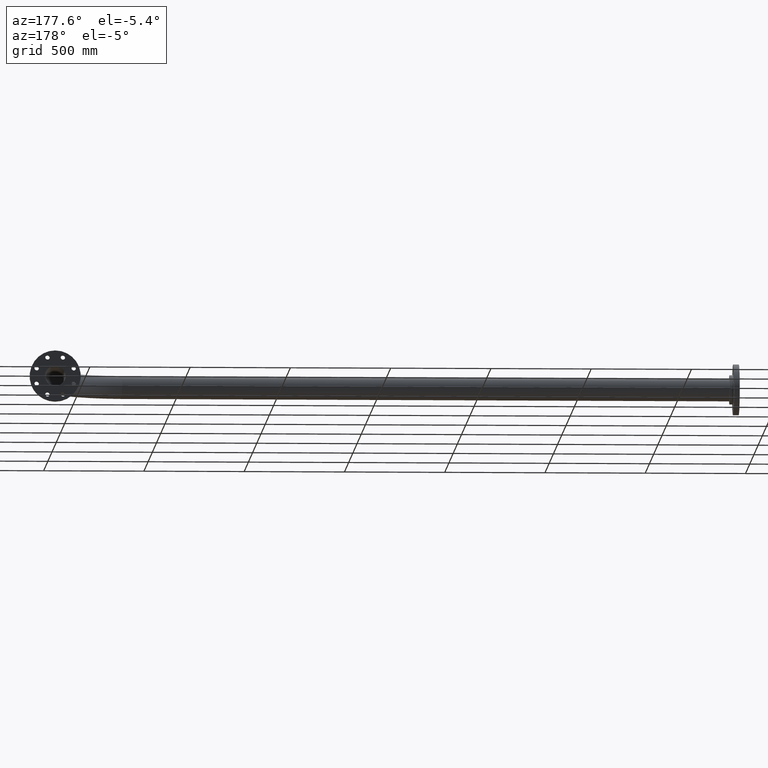
[diagram: clean part render]
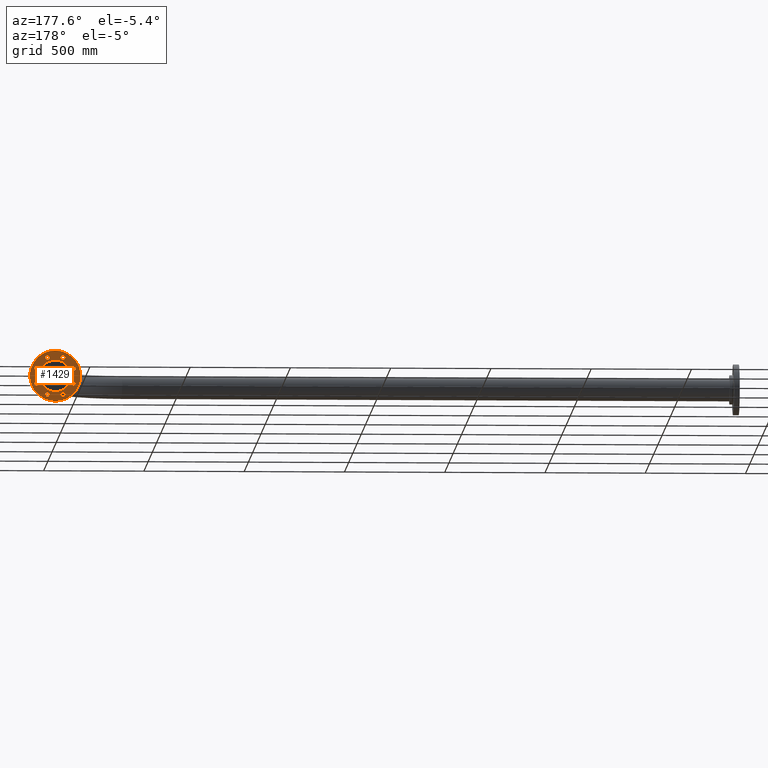
[diagram: same view with one face highlighted and labeled with its STEP entity id]
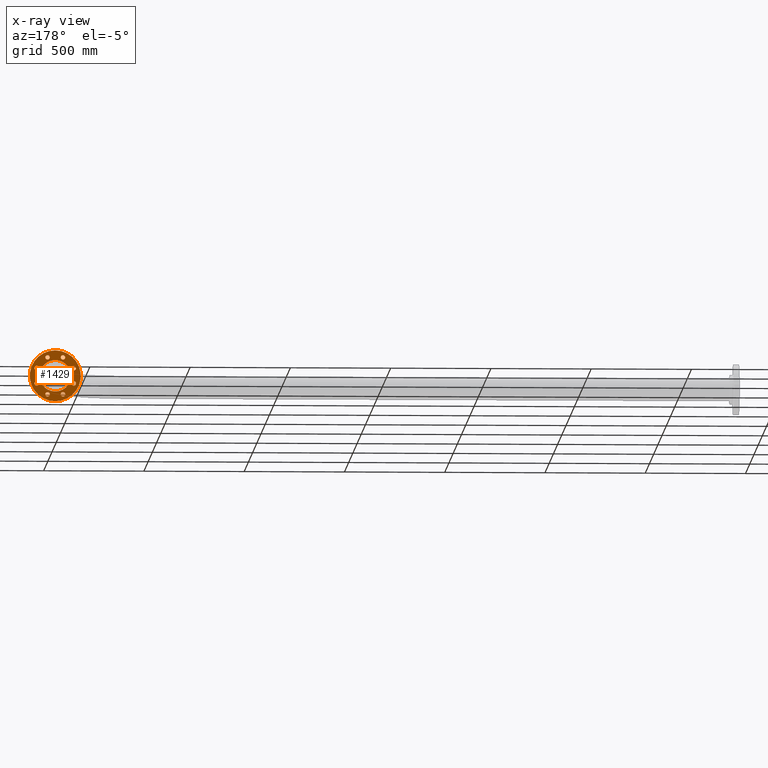
[diagram: x-ray of the same camera — body ghosted, the highlighted face saturated]
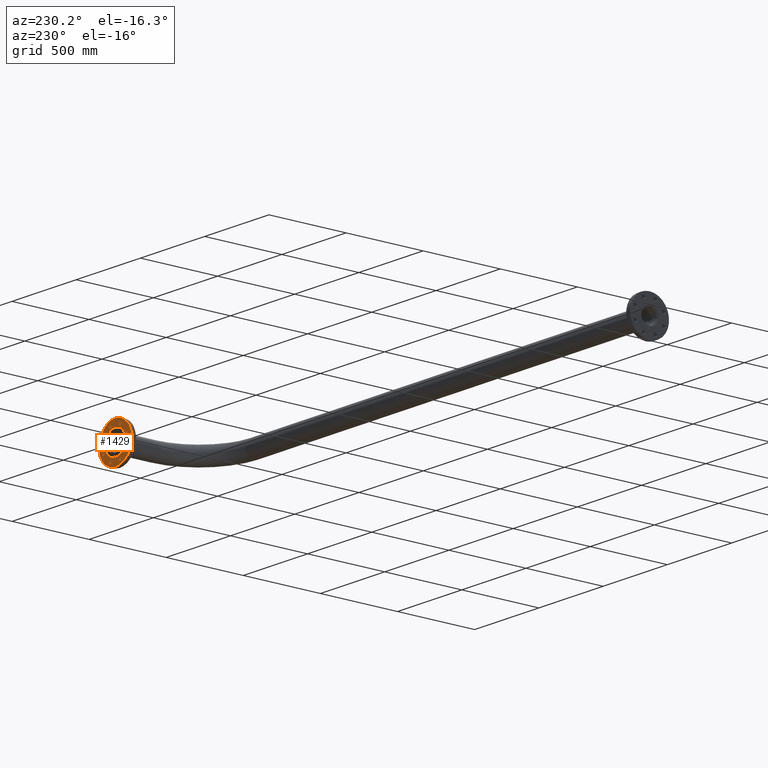
[diagram: same view with one face highlighted and labeled with its STEP entity id]
A machine part, auxiliary view. The second image highlights one B-rep face of the part: STEP entity #1429.
The next image is the same camera in x-ray: the body ghosted, the highlighted face saturated — about 0% of this face is hidden behind the body in this view.
A second angle (auxiliary view) of the same face is appended — the face is thin or edge-on in the first view.
In plain terms, the highlighted planar face has unit normal (0, 1, 0).
Its self-contained STEP definition (entity closure, byte-faithful):
#2 = DIRECTION ( 'NONE',  ( -5.626340840607362429E-16, 1.498801083243957582E-15, 1.000000000000000000 ) ) ;
#7 = DIRECTION ( 'NONE',  ( -0.7071067811865491270, 0.7071067811865460184, 1.541976423090497408E-15 ) ) ;
#22 = CARTESIAN_POINT ( 'NONE',  ( 81.13795325112856460, -38.26834323650806624, 28.39999999999952962 ) ) ;
#27 = ORIENTED_EDGE ( 'NONE', *, *, #766, .F. ) ;
#33 = EDGE_CURVE ( 'NONE', #1556, #860, #152, .T. ) ;
#36 = VERTEX_POINT ( 'NONE', #138 ) ;
#40 = EDGE_LOOP ( 'NONE', ( #1294, #1392 ) ) ;
#44 = EDGE_CURVE ( 'NONE', #1414, #418, #1415, .T. ) ;
#53 = EDGE_CURVE ( 'NONE', #1008, #328, #1019, .T. ) ;
#71 = CARTESIAN_POINT ( 'NONE',  ( 38.26834323650916048, 92.38795325112914725, 28.39999999999953673 ) ) ;
#75 = CARTESIAN_POINT ( 'NONE',  ( -38.26834323650871283, 92.38795325112914725, 28.39999999999953673 ) ) ;
#78 = CARTESIAN_POINT ( 'NONE',  ( -1.597880798732289971E-14, 8.881784197001252323E-13, 28.39999999999953673 ) ) ;
#95 = DIRECTION ( 'NONE',  ( -5.626340840607362429E-16, 1.498801083243957582E-15, 1.000000000000000000 ) ) ;
#104 = CARTESIAN_POINT ( 'NONE',  ( -103.6379532511285220, -38.26834323650895442, 28.39999999999952962 ) ) ;
#109 = EDGE_LOOP ( 'NONE', ( #1263, #214 ) ) ;
#112 = CIRCLE ( 'NONE', #1203, 78.59999999999983800 ) ;
#116 = CARTESIAN_POINT ( 'NONE',  ( 38.26834323650958680, -92.38795325112825196, 28.39999999999953673 ) ) ;
#123 = VERTEX_POINT ( 'NONE', #343 ) ;
#138 = CARTESIAN_POINT ( 'NONE',  ( 126.9999999999999716, 1.453382347203557366E-13, 28.39999999999961133 ) ) ;
#149 = EDGE_CURVE ( 'NONE', #123, #36, #1716, .T. ) ;
#150 = FACE_BOUND ( 'NONE', #855, .T. ) ;
#152 = CIRCLE ( 'NONE', #1135, 11.24999999999997513 ) ;
#178 = EDGE_CURVE ( 'NONE', #36, #123, #706, .T. ) ;
#179 = FACE_OUTER_BOUND ( 'NONE', #271, .T. ) ;
#186 = DIRECTION ( 'NONE',  ( -5.626340840607362429E-16, 1.498801083243957582E-15, 1.000000000000000000 ) ) ;
#214 = ORIENTED_EDGE ( 'NONE', *, *, #984, .F. ) ;
#228 = DIRECTION ( 'NONE',  ( -5.626340840607362429E-16, 1.498801083243957582E-15, 1.000000000000000000 ) ) ;
#229 = ORIENTED_EDGE ( 'NONE', *, *, #178, .T. ) ;
#234 = ORIENTED_EDGE ( 'NONE', *, *, #822, .F. ) ;
#245 = DIRECTION ( 'NONE',  ( 9.868649107779124721E-15, -1.000000000000000000, -1.541976423090488139E-15 ) ) ;
#256 = EDGE_CURVE ( 'NONE', #1396, #1044, #671, .T. ) ;
#264 = DIRECTION ( 'NONE',  ( -1.000000000000000000, -1.233581138472398873E-15, 6.167905692361994366E-16 ) ) ;
#267 = CARTESIAN_POINT ( 'NONE',  ( -27.01834323650894376, -92.38795325112822354, 28.39999999999954383 ) ) ;
#271 = EDGE_LOOP ( 'NONE', ( #785, #229 ) ) ;
#275 = CIRCLE ( 'NONE', #1268, 11.24999999999998401 ) ;
#287 = CARTESIAN_POINT ( 'NONE',  ( -1.597880798732289971E-14, 8.881784197001252323E-13, 28.39999999999953673 ) ) ;
#291 = DIRECTION ( 'NONE',  ( -1.000000000000000000, -1.233581138472398873E-15, 6.167905692361994366E-16 ) ) ;
#299 = CIRCLE ( 'NONE', #1546, 11.25000000000005151 ) ;
#328 = VERTEX_POINT ( 'NONE', #1244 ) ;
#337 = VERTEX_POINT ( 'NONE', #1654 ) ;
#340 = CARTESIAN_POINT ( 'NONE',  ( 92.38795325112855039, -38.26834323650807335, 28.39999999999953673 ) ) ;
#343 = CARTESIAN_POINT ( 'NONE',  ( -127.0000000000000284, -1.771473346016968476E-13, 28.39999999999946212 ) ) ;
#350 = CARTESIAN_POINT ( 'NONE',  ( -1.597880798732289971E-14, 8.881784197001252323E-13, 28.39999999999953673 ) ) ;
#379 = DIRECTION ( 'NONE',  ( -5.626340840607362429E-16, 1.498801083243957582E-15, 1.000000000000000000 ) ) ;
#380 = EDGE_CURVE ( 'NONE', #860, #1556, #1048, .T. ) ;
#381 = DIRECTION ( 'NONE',  ( -0.7071067811865391350, -0.7071067811865560104, -6.167905692361974645E-16 ) ) ;
#383 = CARTESIAN_POINT ( 'NONE',  ( 27.01834323650916758, 92.38795325112914725, 28.39999999999952962 ) ) ;
#392 = CARTESIAN_POINT ( 'NONE',  ( -92.38795325112859302, 38.26834323650984970, 28.39999999999953673 ) ) ;
#409 = DIRECTION ( 'NONE',  ( -5.626340840607362429E-16, 1.498801083243957582E-15, 1.000000000000000000 ) ) ;
#410 = CARTESIAN_POINT ( 'NONE',  ( 38.26834323650916048, 92.38795325112914725, 28.39999999999953673 ) ) ;
#418 = VERTEX_POINT ( 'NONE', #569 ) ;
#455 = CARTESIAN_POINT ( 'NONE',  ( -103.6379532511285930, 38.26834323650985681, 28.39999999999952962 ) ) ;
#460 = VERTEX_POINT ( 'NONE', #581 ) ;
#485 = EDGE_LOOP ( 'NONE', ( #930, #570 ) ) ;
#487 = EDGE_CURVE ( 'NONE', #600, #639, #1340, .T. ) ;
#503 = CARTESIAN_POINT ( 'NONE',  ( -49.51834323650894021, -92.38795325112825196, 28.39999999999952962 ) ) ;
#532 = EDGE_CURVE ( 'NONE', #460, #1572, #572, .T. ) ;
#554 = EDGE_CURVE ( 'NONE', #1563, #851, #1484, .T. ) ;
#565 = FACE_BOUND ( 'NONE', #485, .T. ) ;
#566 = EDGE_LOOP ( 'NONE', ( #1171, #918 ) ) ;
#569 = CARTESIAN_POINT ( 'NONE',  ( 49.51834323650957970, -92.38795325112822354, 28.39999999999954383 ) ) ;
#570 = ORIENTED_EDGE ( 'NONE', *, *, #256, .F. ) ;
#572 = CIRCLE ( 'NONE', #1368, 78.59999999999983800 ) ;
#581 = CARTESIAN_POINT ( 'NONE',  ( -78.60000000000000853, 8.040232677904263736E-13, 28.39999999999949054 ) ) ;
#600 = VERTEX_POINT ( 'NONE', #1156 ) ;
#602 = EDGE_CURVE ( 'NONE', #1572, #460, #112, .T. ) ;
#616 = DIRECTION ( 'NONE',  ( -2.467162276944781180E-15, 1.000000000000000000, 1.541976423090488139E-15 ) ) ;
#639 = VERTEX_POINT ( 'NONE', #877 ) ;
#641 = CARTESIAN_POINT ( 'NONE',  ( 49.51834323650913916, 92.38795325112914725, 28.39999999999952962 ) ) ;
#642 = DIRECTION ( 'NONE',  ( -5.626340840607362429E-16, 1.498801083243957582E-15, 1.000000000000000000 ) ) ;
#654 = DIRECTION ( 'NONE',  ( -0.7071067811865491270, 0.7071067811865460184, 1.541976423090497408E-15 ) ) ;
#662 = CARTESIAN_POINT ( 'NONE',  ( -38.26834323650871283, 92.38795325112914725, 28.39999999999953673 ) ) ;
#670 = EDGE_CURVE ( 'NONE', #965, #698, #1702, .T. ) ;
#671 = CIRCLE ( 'NONE', #906, 11.24999999999997513 ) ;
#673 = DIRECTION ( 'NONE',  ( 1.000000000000000000, 1.208395885720003036E-15, -5.626340840607404830E-16 ) ) ;
#691 = FACE_BOUND ( 'NONE', #566, .T. ) ;
#698 = VERTEX_POINT ( 'NONE', #455 ) ;
#701 = ORIENTED_EDGE ( 'NONE', *, *, #53, .F. ) ;
#702 = AXIS2_PLACEMENT_3D ( 'NONE', #662, #1188, #1582 ) ;
#706 = CIRCLE ( 'NONE', #1718, 126.9999999999997584 ) ;
#766 = EDGE_CURVE ( 'NONE', #639, #600, #1369, .T. ) ;
#784 = FACE_BOUND ( 'NONE', #1306, .T. ) ;
#785 = ORIENTED_EDGE ( 'NONE', *, *, #149, .T. ) ;
#788 = CARTESIAN_POINT ( 'NONE',  ( -1.597880798732289971E-14, 8.881784197001252323E-13, 28.39999999999953673 ) ) ;
#815 = DIRECTION ( 'NONE',  ( -5.626340840607362429E-16, 1.498801083243957582E-15, 1.000000000000000000 ) ) ;
#822 = EDGE_CURVE ( 'NONE', #328, #1008, #1029, .T. ) ;
#836 = AXIS2_PLACEMENT_3D ( 'NONE', #1296, #95, #616 ) ;
#851 = VERTEX_POINT ( 'NONE', #22 ) ;
#855 = EDGE_LOOP ( 'NONE', ( #27, #1614 ) ) ;
#860 = VERTEX_POINT ( 'NONE', #267 ) ;
#873 = AXIS2_PLACEMENT_3D ( 'NONE', #1397, #1657, #1237 ) ;
#877 = CARTESIAN_POINT ( 'NONE',  ( 103.6379532511279393, 38.26834323651077341, 28.39999999999954383 ) ) ;
#902 = DIRECTION ( 'NONE',  ( -5.626340840607362429E-16, 1.498801083243957582E-15, 1.000000000000000000 ) ) ;
#906 = AXIS2_PLACEMENT_3D ( 'NONE', #410, #815, #1605 ) ;
#909 = CARTESIAN_POINT ( 'NONE',  ( 27.01834323650959035, -92.38795325112825196, 28.39999999999952962 ) ) ;
#913 = DIRECTION ( 'NONE',  ( 1.000000000000000000, 1.208395885720002839E-15, -5.736880786694963606E-16 ) ) ;
#914 = CARTESIAN_POINT ( 'NONE',  ( 78.59999999999982379, 9.831583363177172458E-13, 28.39999999999949054 ) ) ;
#918 = ORIENTED_EDGE ( 'NONE', *, *, #33, .F. ) ;
#930 = ORIENTED_EDGE ( 'NONE', *, *, #1277, .F. ) ;
#942 = CARTESIAN_POINT ( 'NONE',  ( 92.38795325112855039, -38.26834323650807335, 28.39999999999953673 ) ) ;
#951 = EDGE_CURVE ( 'NONE', #1270, #337, #1010, .T. ) ;
#953 = CIRCLE ( 'NONE', #1632, 11.25000000000005151 ) ;
#962 = AXIS2_PLACEMENT_3D ( 'NONE', #350, #379, #913 ) ;
#965 = VERTEX_POINT ( 'NONE', #1347 ) ;
#984 = EDGE_CURVE ( 'NONE', #851, #1563, #299, .T. ) ;
#996 = CARTESIAN_POINT ( 'NONE',  ( 92.38795325112795354, 38.26834323651073788, 28.39999999999953673 ) ) ;
#1008 = VERTEX_POINT ( 'NONE', #1192 ) ;
#1010 = CIRCLE ( 'NONE', #1599, 11.24999999999998401 ) ;
#1012 = DIRECTION ( 'NONE',  ( 1.000000000000000000, 1.208395885720003233E-15, -5.738271040126854817E-16 ) ) ;
#1019 = CIRCLE ( 'NONE', #702, 11.25000000000000178 ) ;
#1029 = CIRCLE ( 'NONE', #1729, 11.25000000000000178 ) ;
#1030 = ORIENTED_EDGE ( 'NONE', *, *, #1400, .F. ) ;
#1032 = DIRECTION ( 'NONE',  ( 1.000000000000000000, 1.208395885720003233E-15, -5.738271040126854817E-16 ) ) ;
#1042 = DIRECTION ( 'NONE',  ( -5.626340840607362429E-16, 1.498801083243957582E-15, 1.000000000000000000 ) ) ;
#1043 = DIRECTION ( 'NONE',  ( -5.626340840607362429E-16, 1.498801083243957582E-15, 1.000000000000000000 ) ) ;
#1044 = VERTEX_POINT ( 'NONE', #641 ) ;
#1047 = CARTESIAN_POINT ( 'NONE',  ( 103.6379532511285504, -38.26834323650803782, 28.39999999999954383 ) ) ;
#1048 = CIRCLE ( 'NONE', #1504, 11.24999999999997513 ) ;
#1075 = EDGE_LOOP ( 'NONE', ( #1030, #1661 ) ) ;
#1083 = FACE_BOUND ( 'NONE', #1241, .T. ) ;
#1094 = FACE_BOUND ( 'NONE', #40, .T. ) ;
#1118 = CARTESIAN_POINT ( 'NONE',  ( -38.26834323650894021, -92.38795325112735668, 28.39999999999953673 ) ) ;
#1134 = CARTESIAN_POINT ( 'NONE',  ( 92.38795325112795354, 38.26834323651073788, 28.39999999999953673 ) ) ;
#1135 = AXIS2_PLACEMENT_3D ( 'NONE', #1223, #2, #264 ) ;
#1149 = AXIS2_PLACEMENT_3D ( 'NONE', #340, #1413, #1544 ) ;
#1156 = CARTESIAN_POINT ( 'NONE',  ( 81.13795325112795354, 38.26834323651074499, 28.39999999999952962 ) ) ;
#1171 = ORIENTED_EDGE ( 'NONE', *, *, #380, .F. ) ;
#1173 = DIRECTION ( 'NONE',  ( -5.626340840607362429E-16, 1.498801083243957582E-15, 1.000000000000000000 ) ) ;
#1184 = DIRECTION ( 'NONE',  ( 0.7071067811865445751, 0.7071067811865504593, 6.167905692361979575E-16 ) ) ;
#1188 = DIRECTION ( 'NONE',  ( -5.626340840607362429E-16, 1.498801083243957582E-15, 1.000000000000000000 ) ) ;
#1192 = CARTESIAN_POINT ( 'NONE',  ( -27.01834323650871639, 92.38795325112916146, 28.39999999999954383 ) ) ;
#1203 = AXIS2_PLACEMENT_3D ( 'NONE', #78, #228, #1012 ) ;
#1210 = CIRCLE ( 'NONE', #873, 11.25000000000001066 ) ;
#1223 = CARTESIAN_POINT ( 'NONE',  ( -38.26834323650894021, -92.38795325112735668, 28.39999999999953673 ) ) ;
#1224 = DIRECTION ( 'NONE',  ( 5.626340840607387081E-16, 1.498801083243958963E-15, 1.000000000000000000 ) ) ;
#1233 = FACE_BOUND ( 'NONE', #109, .T. ) ;
#1237 = DIRECTION ( 'NONE',  ( -0.7071067811865391350, -0.7071067811865560104, -6.167905692361974645E-16 ) ) ;
#1241 = EDGE_LOOP ( 'NONE', ( #1541, #1625 ) ) ;
#1244 = CARTESIAN_POINT ( 'NONE',  ( -49.51834323650870573, 92.38795325112914725, 28.39999999999952962 ) ) ;
#1253 = DIRECTION ( 'NONE',  ( -5.626340840607362429E-16, 1.498801083243957582E-15, 1.000000000000000000 ) ) ;
#1259 = ORIENTED_EDGE ( 'NONE', *, *, #1408, .F. ) ;
#1262 = DIRECTION ( 'NONE',  ( -5.626340840607362429E-16, 1.498801083243957582E-15, 1.000000000000000000 ) ) ;
#1263 = ORIENTED_EDGE ( 'NONE', *, *, #554, .F. ) ;
#1267 = CIRCLE ( 'NONE', #1493, 11.24999999999997513 ) ;
#1268 = AXIS2_PLACEMENT_3D ( 'NONE', #1707, #1043, #654 ) ;
#1270 = VERTEX_POINT ( 'NONE', #104 ) ;
#1277 = EDGE_CURVE ( 'NONE', #1044, #1396, #1267, .T. ) ;
#1283 = CARTESIAN_POINT ( 'NONE',  ( -1.597880798732289971E-14, 8.881784197001252323E-13, 28.39999999999953673 ) ) ;
#1294 = ORIENTED_EDGE ( 'NONE', *, *, #1603, .F. ) ;
#1296 = CARTESIAN_POINT ( 'NONE',  ( -92.38795325112859302, 38.26834323650984970, 28.39999999999953673 ) ) ;
#1306 = EDGE_LOOP ( 'NONE', ( #701, #234 ) ) ;
#1318 = DIRECTION ( 'NONE',  ( -2.467162276944781180E-15, 1.000000000000000000, 1.541976423090488139E-15 ) ) ;
#1340 = CIRCLE ( 'NONE', #1451, 11.24999999999998401 ) ;
#1347 = CARTESIAN_POINT ( 'NONE',  ( -81.13795325112860723, 38.26834323650988523, 28.39999999999954383 ) ) ;
#1356 = FACE_BOUND ( 'NONE', #1075, .T. ) ;
#1368 = AXIS2_PLACEMENT_3D ( 'NONE', #1283, #902, #1032 ) ;
#1369 = CIRCLE ( 'NONE', #1514, 11.24999999999998401 ) ;
#1392 = ORIENTED_EDGE ( 'NONE', *, *, #44, .F. ) ;
#1396 = VERTEX_POINT ( 'NONE', #383 ) ;
#1397 = CARTESIAN_POINT ( 'NONE',  ( 38.26834323650958680, -92.38795325112825196, 28.39999999999953673 ) ) ;
#1400 = EDGE_CURVE ( 'NONE', #337, #1270, #275, .T. ) ;
#1408 = EDGE_CURVE ( 'NONE', #698, #965, #953, .T. ) ;
#1409 = AXIS2_PLACEMENT_3D ( 'NONE', #287, #1224, #673 ) ;
#1413 = DIRECTION ( 'NONE',  ( -5.626340840607362429E-16, 1.498801083243957582E-15, 1.000000000000000000 ) ) ;
#1414 = VERTEX_POINT ( 'NONE', #909 ) ;
#1415 = CIRCLE ( 'NONE', #1503, 11.25000000000001066 ) ;
#1424 = ORIENTED_EDGE ( 'NONE', *, *, #670, .F. ) ;
#1429 = ADVANCED_FACE ( 'NONE', ( #784, #1468, #1356, #691, #1094, #1233, #150, #565, #1083, #179 ), #1506, .T. ) ;
#1451 = AXIS2_PLACEMENT_3D ( 'NONE', #996, #1262, #1538 ) ;
#1468 = FACE_BOUND ( 'NONE', #1728, .T. ) ;
#1481 = CARTESIAN_POINT ( 'NONE',  ( -92.38795325112853618, -38.26834323650896152, 28.39999999999953673 ) ) ;
#1484 = CIRCLE ( 'NONE', #1149, 11.25000000000005151 ) ;
#1492 = DIRECTION ( 'NONE',  ( 1.000000000000000000, 1.208395885720002839E-15, -5.736880786694963606E-16 ) ) ;
#1493 = AXIS2_PLACEMENT_3D ( 'NONE', #71, #1173, #1543 ) ;
#1503 = AXIS2_PLACEMENT_3D ( 'NONE', #116, #1042, #381 ) ;
#1504 = AXIS2_PLACEMENT_3D ( 'NONE', #1118, #1253, #291 ) ;
#1506 = PLANE ( 'NONE',  #1409 ) ;
#1514 = AXIS2_PLACEMENT_3D ( 'NONE', #1134, #1700, #1668 ) ;
#1538 = DIRECTION ( 'NONE',  ( 0.7071067811865541231, -0.7071067811865410224, -1.541976423090497408E-15 ) ) ;
#1541 = ORIENTED_EDGE ( 'NONE', *, *, #602, .F. ) ;
#1543 = DIRECTION ( 'NONE',  ( 1.000000000000000000, 1.233581138472398873E-15, -6.167905692361994366E-16 ) ) ;
#1544 = DIRECTION ( 'NONE',  ( 9.868649107779124721E-15, -1.000000000000000000, -1.541976423090488139E-15 ) ) ;
#1546 = AXIS2_PLACEMENT_3D ( 'NONE', #942, #409, #245 ) ;
#1556 = VERTEX_POINT ( 'NONE', #503 ) ;
#1563 = VERTEX_POINT ( 'NONE', #1047 ) ;
#1572 = VERTEX_POINT ( 'NONE', #914 ) ;
#1582 = DIRECTION ( 'NONE',  ( 0.7071067811865445751, 0.7071067811865504593, 6.167905692361979575E-16 ) ) ;
#1584 = DIRECTION ( 'NONE',  ( -5.626340840607362429E-16, 1.498801083243957582E-15, 1.000000000000000000 ) ) ;
#1599 = AXIS2_PLACEMENT_3D ( 'NONE', #1481, #1611, #7 ) ;
#1603 = EDGE_CURVE ( 'NONE', #418, #1414, #1210, .T. ) ;
#1605 = DIRECTION ( 'NONE',  ( 1.000000000000000000, 1.233581138472398873E-15, -6.167905692361994366E-16 ) ) ;
#1611 = DIRECTION ( 'NONE',  ( -5.626340840607362429E-16, 1.498801083243957582E-15, 1.000000000000000000 ) ) ;
#1614 = ORIENTED_EDGE ( 'NONE', *, *, #487, .F. ) ;
#1625 = ORIENTED_EDGE ( 'NONE', *, *, #532, .F. ) ;
#1632 = AXIS2_PLACEMENT_3D ( 'NONE', #392, #1584, #1318 ) ;
#1654 = CARTESIAN_POINT ( 'NONE',  ( -81.13795325112853618, -38.26834323650892600, 28.39999999999954383 ) ) ;
#1657 = DIRECTION ( 'NONE',  ( -5.626340840607362429E-16, 1.498801083243957582E-15, 1.000000000000000000 ) ) ;
#1661 = ORIENTED_EDGE ( 'NONE', *, *, #951, .F. ) ;
#1668 = DIRECTION ( 'NONE',  ( 0.7071067811865541231, -0.7071067811865410224, -1.541976423090497408E-15 ) ) ;
#1700 = DIRECTION ( 'NONE',  ( -5.626340840607362429E-16, 1.498801083243957582E-15, 1.000000000000000000 ) ) ;
#1702 = CIRCLE ( 'NONE', #836, 11.25000000000005151 ) ;
#1707 = CARTESIAN_POINT ( 'NONE',  ( -92.38795325112853618, -38.26834323650896152, 28.39999999999953673 ) ) ;
#1716 = CIRCLE ( 'NONE', #962, 126.9999999999997584 ) ;
#1718 = AXIS2_PLACEMENT_3D ( 'NONE', #788, #642, #1492 ) ;
#1728 = EDGE_LOOP ( 'NONE', ( #1424, #1259 ) ) ;
#1729 = AXIS2_PLACEMENT_3D ( 'NONE', #75, #186, #1184 ) ;